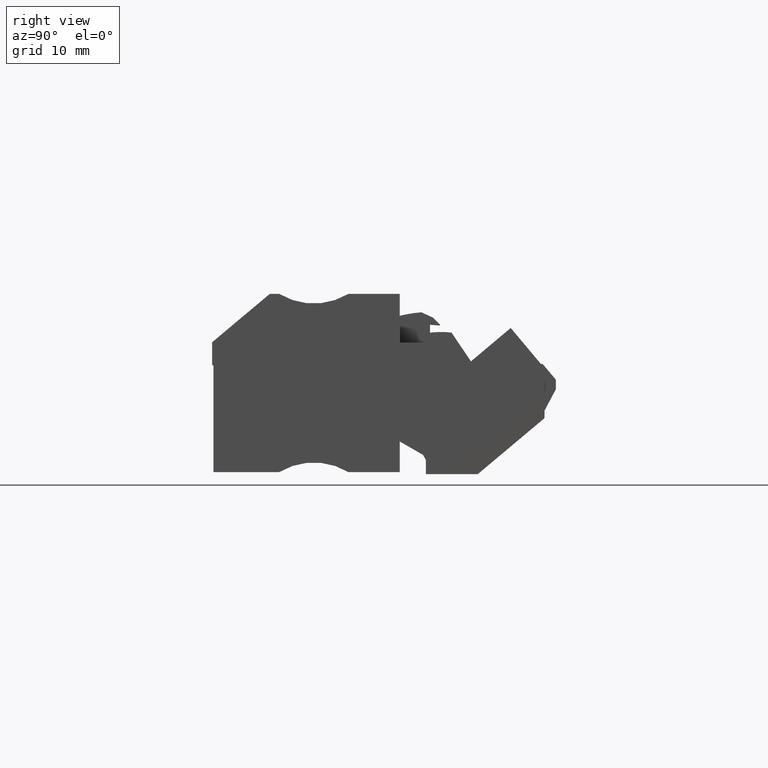
[diagram: clean part render]
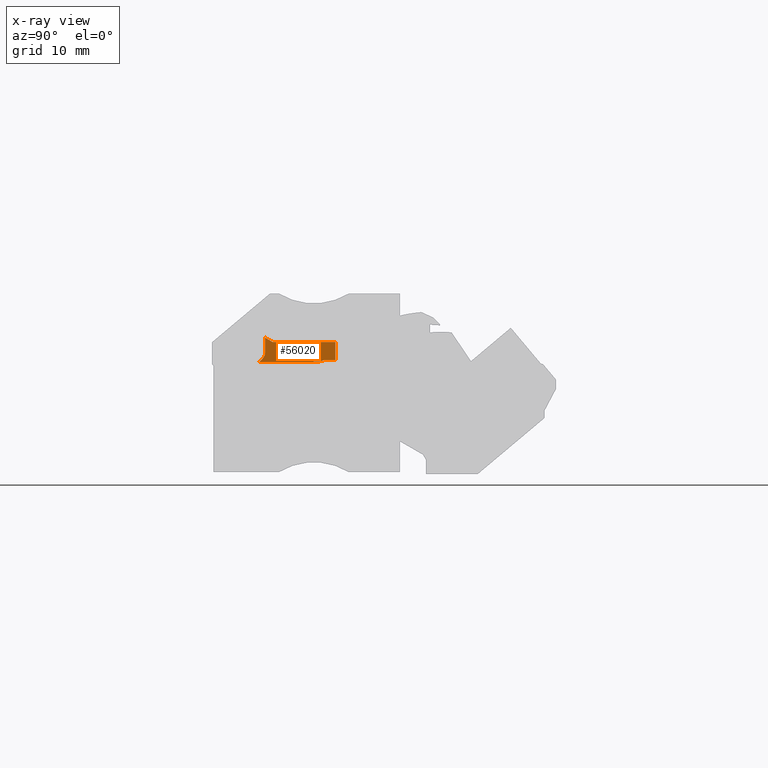
[diagram: x-ray — body ghosted, one internal face saturated and labeled with its STEP entity id]
A machine part, right view, then the same camera in x-ray: the body is ghosted and one INTERNAL B-rep face — a face not visible from any outside direction — is saturated and labeled: STEP entity #56020.
In plain terms, the highlighted planar face has unit normal (-1, 0, 0).
Its self-contained STEP definition (entity closure, byte-faithful):
#54660=CARTESIAN_POINT('',(439.003158786888,695.383861742583,
131.019999972595));
#54670=DIRECTION('',(5.48619395602313E-11,-3.51221505597609E-10,-1.));
#54680=DIRECTION('',(-1.32734873092824E-9,-1.,3.51221505524789E-10));
#54690=AXIS2_PLACEMENT_3D('',#54660,#54670,#54680);
#54700=PLANE('',#54690);
#54710=CARTESIAN_POINT('',(438.648616176927,676.714061047288,
131.019999979133));
#54720=DIRECTION('',(5.59150170609455E-10,-1.,3.51221513140156E-10));
#54730=VECTOR('',#54720,1.);
#54740=LINE('',#54710,#54730);
#54750=CARTESIAN_POINT('',(438.648616169311,690.334347613985,
131.019999974349));
#54760=VERTEX_POINT('',#54750);
#54770=CARTESIAN_POINT('',(438.648616170821,687.634358946246,
131.019999975294));
#54780=VERTEX_POINT('',#54770);
#54790=EDGE_CURVE('',#54760,#54780,#54740,.T.);
#54800=ORIENTED_EDGE('',*,*,#54790,.F.);
#54810=CARTESIAN_POINT('',(449.568914086692,687.63435892703,
131.019999975896));
#54820=DIRECTION('',(1.,-1.75962394655114E-9,5.48619612102419E-11));
#54830=VECTOR('',#54820,1.);
#54840=LINE('',#54810,#54830);
#54850=CARTESIAN_POINT('',(437.004730008475,687.634358949139,
131.019999975207));
#54860=VERTEX_POINT('',#54850);
#54870=EDGE_CURVE('',#54860,#54780,#54840,.T.);
#54880=ORIENTED_EDGE('',*,*,#54870,.T.);
#54890=CARTESIAN_POINT('',(423.01691498347,683.886335236593,
131.019999975756));
#54900=DIRECTION('',(0.965925826756713,0.258819043357248,
-3.79102048216828E-11));
#54910=VECTOR('',#54900,1.);
#54920=LINE('',#54890,#54910);
#54930=CARTESIAN_POINT('',(436.068013264878,687.383366456155,
131.019999975246));
#54940=VERTEX_POINT('',#54930);
#54950=EDGE_CURVE('',#54940,#54860,#54920,.T.);
#54960=ORIENTED_EDGE('',*,*,#54950,.T.);
#54970=CARTESIAN_POINT('',(419.663047706103,687.240202523181,
131.019999974394));
#54980=DIRECTION('',(0.999961923081495,0.00872653351327912,
5.17949545808724E-11));
#54990=VECTOR('',#54980,1.);
#55000=LINE('',#54970,#54990);
#55010=CARTESIAN_POINT('',(427.230390913423,687.306241711855,
131.019999974786));
#55020=VERTEX_POINT('',#55010);
#55030=EDGE_CURVE('',#55020,#54940,#55000,.T.);
#55040=ORIENTED_EDGE('',*,*,#55030,.T.);
#55050=CARTESIAN_POINT('',(428.516102323367,688.734358763217,
132.669999975824));
#55060=DIRECTION('',(-1.,1.98493286075438E-9,-5.36985786783176E-11));
#55070=DIRECTION('',(-1.98495192504897E-9,-1.,4.42871223279918E-10));
#55080=AXIS2_PLACEMENT_3D('',#55050,#55060,#55070);
#55090=CONICAL_SURFACE('',#55080,1.4398990952349,0.5235987755983);
#55100=CARTESIAN_POINT('',(427.230390913547,687.306241711981,
131.019999974786));
#55110=CARTESIAN_POINT('',(427.269687419676,687.340909412451,
131.019999974776));
#55120=CARTESIAN_POINT('',(427.30866056753,687.376011387175,
131.019999974766));
#55130=CARTESIAN_POINT('',(427.347205614307,687.411589704308,
131.019999974755));
#55140=CARTESIAN_POINT('',(427.385750729773,687.447168084842,
131.019999974745));
#55150=CARTESIAN_POINT('',(427.423868608912,687.48322291909,
131.019999974734));
#55160=CARTESIAN_POINT('',(427.461441345922,687.51981614379,
131.019999974724));
#55170=CARTESIAN_POINT('',(427.499014078222,687.556409363902,
131.019999974713));
#55180=CARTESIAN_POINT('',(427.536043204868,687.593541445298,
131.019999974702));
#55190=CARTESIAN_POINT('',(427.572389371266,687.631299119779,
131.01999997469));
#55200=CARTESIAN_POINT('',(427.590562524779,687.650178030065,
131.019999974685));
#55210=CARTESIAN_POINT('',(427.608564692389,687.669213913242,
131.019999974679));
#55220=CARTESIAN_POINT('',(427.626375473456,687.68842040939,
131.019999974673));
#55230=CARTESIAN_POINT('',(427.644186239979,687.707626889855,
131.019999974668));
#55240=CARTESIAN_POINT('',(427.661805721533,687.727004036219,
131.019999974675));
#55250=CARTESIAN_POINT('',(427.679210673188,687.746567422849,
131.019999974669));
#55260=B_SPLINE_CURVE_WITH_KNOTS('',3,(#55100,#55110,#55120,#55130,
#55140,#55150,#55160,#55170,#55180,#55190,#55200,#55210,#55220,#55230,
#55240,#55250),.UNSPECIFIED.,.F.,.F.,(4,3,3,3,3,4),(0.,0.157305173026963
,0.314671771744229,0.471961512916299,0.550558712877034,0.62912621570098)
,.UNSPECIFIED.);
#55270=SURFACE_CURVE('',#55260,(#55090,#54700),.CURVE_3D.);
#55280=CARTESIAN_POINT('',(427.679210673488,687.746567423253,
131.019999974656));
#55290=VERTEX_POINT('',#55280);
#55300=EDGE_CURVE('',#55020,#55290,#55270,.T.);
#55310=ORIENTED_EDGE('',*,*,#55300,.F.);
#55320=CARTESIAN_POINT('',(428.15219687914,688.734358763203,
131.019999974335));
#55330=CARTESIAN_POINT('',(428.152196879091,688.711141793116,
131.019999974343));
#55340=CARTESIAN_POINT('',(428.151347702676,688.687915889785,
131.019999974351));
#55350=CARTESIAN_POINT('',(428.149649958058,688.664683097604,
131.019999974359));
#55360=CARTESIAN_POINT('',(428.147952559825,688.641455045526,
131.019999974367));
#55370=CARTESIAN_POINT('',(428.145406943564,688.61824146023,
131.019999974376));
#55380=CARTESIAN_POINT('',(428.142037661457,688.595109662711,
131.019999974383));
#55390=CARTESIAN_POINT('',(428.138668410952,688.571978082155,
131.019999974391));
#55400=CARTESIAN_POINT('',(428.134475915959,688.548930749222,
131.0199999744));
#55410=CARTESIAN_POINT('',(428.129508905296,688.526036953687,
131.019999974408));
#55420=CARTESIAN_POINT('',(428.124541901551,688.503143190037,
131.019999974416));
#55430=CARTESIAN_POINT('',(428.11880106713,688.480404910752,
131.019999974424));
#55440=CARTESIAN_POINT('',(428.11235560276,688.457886460032,
131.019999974432));
#55450=CARTESIAN_POINT('',(428.105910108886,688.43536790624,
131.019999974439));
#55460=CARTESIAN_POINT('',(428.09876072671,688.4130705035,
131.019999974445));
#55470=CARTESIAN_POINT('',(428.090991227918,688.391049665504,
131.019999974453));
#55480=CARTESIAN_POINT('',(428.08322154819,688.369028314685,
131.01999997446));
#55490=CARTESIAN_POINT('',(428.074832934481,688.347285632688,
131.019999974467));
#55500=CARTESIAN_POINT('',(428.065915765665,688.325862649836,
131.019999974474));
#55510=CARTESIAN_POINT('',(428.056995437195,688.3044320761,
131.019999974481));
#55520=CARTESIAN_POINT('',(428.047512918778,688.283239209737,
131.019999974488));
#55530=CARTESIAN_POINT('',(428.037525095785,688.262275831502,
131.019999974494));
#55540=CARTESIAN_POINT('',(428.027537232702,688.241312369122,
131.019999974501));
#55550=CARTESIAN_POINT('',(428.017043967328,688.220578132036,
131.019999974508));
#55560=CARTESIAN_POINT('',(428.006097944308,688.200064069455,
131.019999974514));
#55570=CARTESIAN_POINT('',(427.995151893501,688.179549954797,
131.019999974521));
#55580=CARTESIAN_POINT('',(427.983752964042,688.159255789726,
131.019999974528));
#55590=CARTESIAN_POINT('',(427.971949894901,688.139172839463,
131.019999974534));
#55600=CARTESIAN_POINT('',(427.960146810547,688.119089863315,
131.01999997454));
#55610=CARTESIAN_POINT('',(427.947939464157,688.099217924807,
131.019999974547));
#55620=CARTESIAN_POINT('',(427.935373259344,688.079549399612,
131.019999974553));
#55630=CARTESIAN_POINT('',(427.91024114627,688.040212813382,
131.019999974565));
#55640=CARTESIAN_POINT('',(427.883674526994,688.00168635179,
131.019999974577));
#55650=CARTESIAN_POINT('',(427.856007569051,687.963930878378,
131.019999974589));
#55660=CARTESIAN_POINT('',(427.828340673862,687.926175490601,
131.019999974601));
#55670=CARTESIAN_POINT('',(427.799571011489,687.889188999346,
131.019999974612));
#55680=CARTESIAN_POINT('',(427.770005839907,687.852961168446,
131.019999974623));
#55690=CARTESIAN_POINT('',(427.740440825882,687.816733530608,
131.019999974635));
#55700=CARTESIAN_POINT('',(427.710078889887,687.781263690393,
131.019999974645));
#55710=CARTESIAN_POINT('',(427.679210673487,687.746567423253,
131.019999974656));
#55720=B_SPLINE_CURVE_WITH_KNOTS('',3,(#55320,#55330,#55340,#55350,
#55360,#55370,#55380,#55390,#55400,#55410,#55420,#55430,#55440,#55450,
#55460,#55470,#55480,#55490,#55500,#55510,#55520,#55530,#55540,#55550,
#55560,#55570,#55580,#55590,#55600,#55610,#55620,#55630,#55640,#55650,
#55660,#55670,#55680,#55690,#55700,#55710),.UNSPECIFIED.,.F.,.F.,(4,3,3,
3,3,3,3,3,3,3,3,3,3,4),(0.,0.0697376606872768,0.139741293086798,
0.209955002738321,0.280243491824966,0.350422486854736,0.42027494924635,
0.489919273095954,0.559624427119167,0.629442190659319,0.699394809882485,
0.839656142116042,0.980066359932534,1.11994613164009),.UNSPECIFIED.);
#55730=SURFACE_CURVE('',#55720,(#54700,#55090),.CURVE_3D.);
#55740=CARTESIAN_POINT('',(428.1521968791,688.734358763205,
131.019999974335));
#55750=VERTEX_POINT('',#55740);
#55760=EDGE_CURVE('',#55750,#55290,#55730,.T.);
#55770=ORIENTED_EDGE('',*,*,#55760,.T.);
#55780=CARTESIAN_POINT('',(428.15219690938,702.907704960569,
131.019999969357));
#55790=DIRECTION('',(2.13640555246622E-9,1.,-3.51221506101979E-10));
#55800=VECTOR('',#55790,1.);
#55810=LINE('',#55780,#55800);
#55820=CARTESIAN_POINT('',(428.152196884033,690.984358764142,
131.019999973617));
#55830=VERTEX_POINT('',#55820);
#55840=EDGE_CURVE('',#55750,#55830,#55810,.T.);
#55850=ORIENTED_EDGE('',*,*,#55840,.F.);
#55860=CARTESIAN_POINT('',(443.853666290594,681.919111146645,
131.01999997759));
#55870=DIRECTION('',(-0.866025403093094,0.500000001197445,
-2.23122558293731E-10));
#55880=VECTOR('',#55870,1.);
#55890=LINE('',#55860,#55880);
#55900=CARTESIAN_POINT('',(429.278049214194,690.334347616181,
131.019999973835));
#55910=VERTEX_POINT('',#55900);
#55920=EDGE_CURVE('',#55910,#55830,#55890,.T.);
#55930=ORIENTED_EDGE('',*,*,#55920,.T.);
#55940=CARTESIAN_POINT('',(416.568902618631,690.334347619159,
131.019999973137));
#55950=DIRECTION('',(1.,-2.34350927552617E-10,5.48619602860575E-11));
#55960=VECTOR('',#55950,1.);
#55970=LINE('',#55940,#55960);
#55980=EDGE_CURVE('',#55910,#54760,#55970,.T.);
#55990=ORIENTED_EDGE('',*,*,#55980,.F.);
#56000=EDGE_LOOP('',(#55990,#55930,#55850,#55770,#55310,#55040,#54960,
#54880,#54800));
#56010=FACE_OUTER_BOUND('',#56000,.T.);
#56020=ADVANCED_FACE('',(#56010),#54700,.F.);